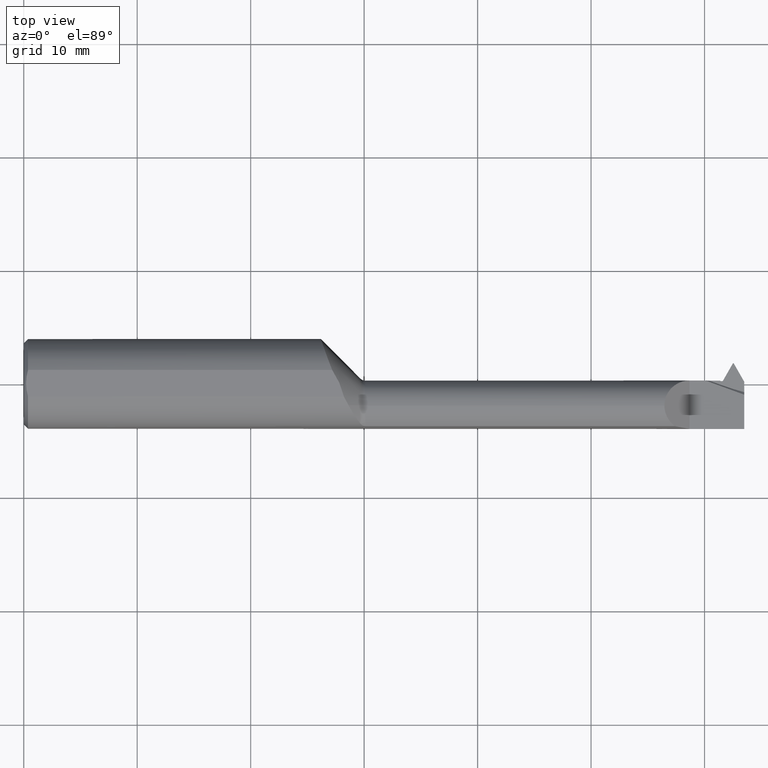
[diagram: clean part render]
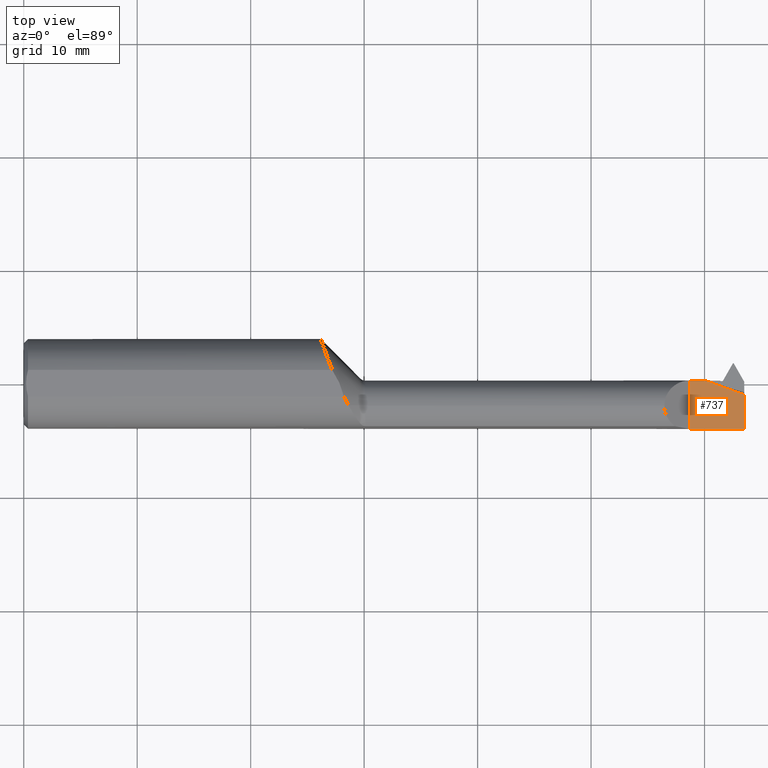
[diagram: same view with one face highlighted and labeled with its STEP entity id]
A machine part, top view. The second image highlights one B-rep face of the part: STEP entity #737.
In plain terms, the highlighted planar face has unit normal (-0, 0, -1).
Its self-contained STEP definition (entity closure, byte-faithful):
#72 = ORIENTED_EDGE ( 'NONE', *, *, #393, .T. ) ;
#74 = VECTOR ( 'NONE', #619, 39.37007874015748143 ) ;
#91 = FACE_OUTER_BOUND ( 'NONE', #466, .T. ) ;
#130 = LINE ( 'NONE', #459, #405 ) ;
#138 = VERTEX_POINT ( 'NONE', #730 ) ;
#172 = DIRECTION ( 'NONE',  ( -0.000000000000000000, 0.000000000000000000, -1.000000000000000000 ) ) ;
#179 = LINE ( 'NONE', #507, #811 ) ;
#298 = CARTESIAN_POINT ( 'NONE',  ( 2.454217284552441036, -0.02376597738886935055, -6.829619984160656814E-17 ) ) ;
#299 = DIRECTION ( 'NONE',  ( -0.000000000000000000, 1.000000000000000000, -0.000000000000000000 ) ) ;
#335 = EDGE_CURVE ( 'NONE', #138, #928, #179, .T. ) ;
#349 = VECTOR ( 'NONE', #873, 39.37007874015748143 ) ;
#359 = ORIENTED_EDGE ( 'NONE', *, *, #840, .F. ) ;
#380 = CARTESIAN_POINT ( 'NONE',  ( 2.500000000000000000, 0.2999999999999999889, -6.429183357567480113E-17 ) ) ;
#393 = EDGE_CURVE ( 'NONE', #662, #687, #864, .T. ) ;
#405 = VECTOR ( 'NONE', #299, 39.37007874015748143 ) ;
#411 = EDGE_CURVE ( 'NONE', #767, #138, #130, .T. ) ;
#419 = CARTESIAN_POINT ( 'NONE',  ( 2.500000000000000000, -0.03710511838095587045, -6.429183357567480113E-17 ) ) ;
#459 = CARTESIAN_POINT ( 'NONE',  ( 2.310000000000000053, 0.2999999999999999889, -6.429183357567480113E-17 ) ) ;
#466 = EDGE_LOOP ( 'NONE', ( #909, #682, #526, #359, #72 ) ) ;
#507 = CARTESIAN_POINT ( 'NONE',  ( 1.175000000000000266, 0.01190000000000018647, -6.429183357567480113E-17 ) ) ;
#519 = CARTESIAN_POINT ( 'NONE',  ( 2.409412122753995078, -0.007407030167613209114, -6.829619984160656814E-17 ) ) ;
#526 = ORIENTED_EDGE ( 'NONE', *, *, #411, .F. ) ;
#619 = DIRECTION ( 'NONE',  ( -1.000000000000000000, -0.000000000000000000, -0.000000000000000000 ) ) ;
#659 = CARTESIAN_POINT ( 'NONE',  ( 2.500000000000000000, -0.1560999999999998500, -6.429183357567480113E-17 ) ) ;
#662 = VERTEX_POINT ( 'NONE', #659 ) ;
#682 = ORIENTED_EDGE ( 'NONE', *, *, #335, .F. ) ;
#687 = VERTEX_POINT ( 'NONE', #419 ) ;
#730 = CARTESIAN_POINT ( 'NONE',  ( 2.310000000000000053, 0.01190000000000016912, -6.429183357567478880E-17 ) ) ;
#737 = ADVANCED_FACE ( 'NONE', ( #91 ), #831, .F. ) ;
#746 = CARTESIAN_POINT ( 'NONE',  ( 2.310000000000000053, -0.1560999999999999333, -6.429183357567478880E-17 ) ) ;
#755 = DIRECTION ( 'NONE',  ( -1.000000000000000000, 0.000000000000000000, 0.000000000000000000 ) ) ;
#767 = VERTEX_POINT ( 'NONE', #746 ) ;
#785 =( BOUNDED_CURVE ( )  B_SPLINE_CURVE ( 3, ( #867, #519, #298, #1016 ),
 .UNSPECIFIED., .F., .F. ) 
 B_SPLINE_CURVE_WITH_KNOTS ( ( 4, 4 ),
 ( 5.868918143978208768, 6.001371134715482114 ),
 .UNSPECIFIED. ) 
 CURVE ( )  GEOMETRIC_REPRESENTATION_ITEM ( )  RATIONAL_B_SPLINE_CURVE ( ( 1.000000000000000000, 0.9985385513741118491, 0.9985385513741118491, 1.000000000000000000 ) ) 
 REPRESENTATION_ITEM ( '' )  );
#811 = VECTOR ( 'NONE', #832, 39.37007874015748143 ) ;
#814 = CARTESIAN_POINT ( 'NONE',  ( 2.365780955931092056, 0.01190000000000018821, 9.866503918139923792E-17 ) ) ;
#824 = EDGE_CURVE ( 'NONE', #928, #687, #785, .T. ) ;
#831 = PLANE ( 'NONE',  #1004 ) ;
#832 = DIRECTION ( 'NONE',  ( 1.000000000000000000, 0.000000000000000000, 0.000000000000000000 ) ) ;
#840 = EDGE_CURVE ( 'NONE', #662, #767, #926, .T. ) ;
#846 = CARTESIAN_POINT ( 'NONE',  ( 2.500000000000000000, -0.1560999999999999888, -6.429183357567480113E-17 ) ) ;
#864 = LINE ( 'NONE', #380, #349 ) ;
#867 = CARTESIAN_POINT ( 'NONE',  ( 2.365780955931092056, 0.01190000000000018821, 9.866503918139923792E-17 ) ) ;
#873 = DIRECTION ( 'NONE',  ( -0.000000000000000000, 1.000000000000000000, -0.000000000000000000 ) ) ;
#905 = CARTESIAN_POINT ( 'NONE',  ( 2.310000000000000053, 0.2999999999999999889, -6.429183357567480113E-17 ) ) ;
#909 = ORIENTED_EDGE ( 'NONE', *, *, #824, .F. ) ;
#926 = LINE ( 'NONE', #846, #74 ) ;
#928 = VERTEX_POINT ( 'NONE', #814 ) ;
#1004 = AXIS2_PLACEMENT_3D ( 'NONE', #905, #172, #755 ) ;
#1016 = CARTESIAN_POINT ( 'NONE',  ( 2.500000000000000000, -0.03710511838095587045, -6.429183357567480113E-17 ) ) ;